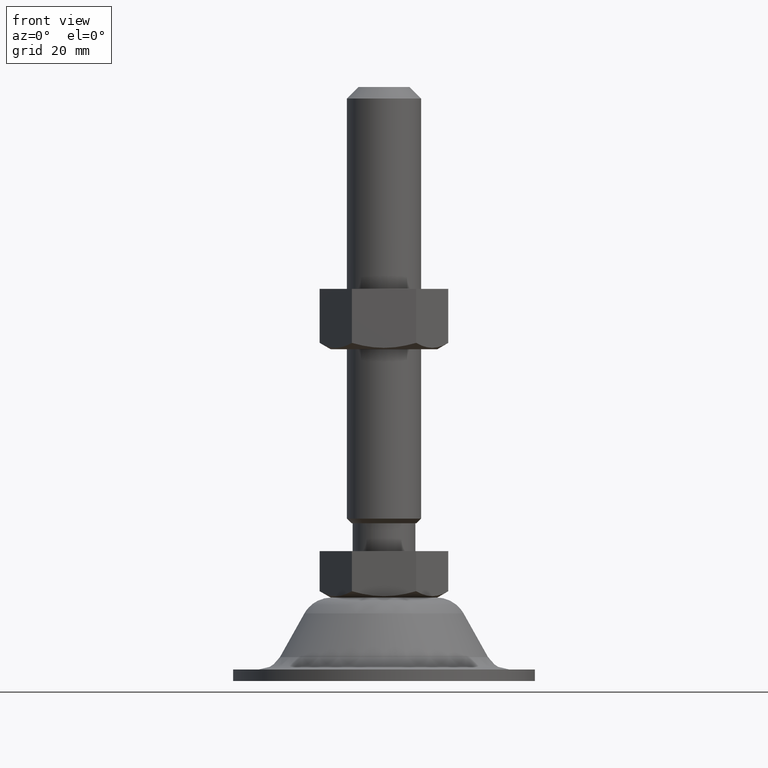
[diagram: clean part render]
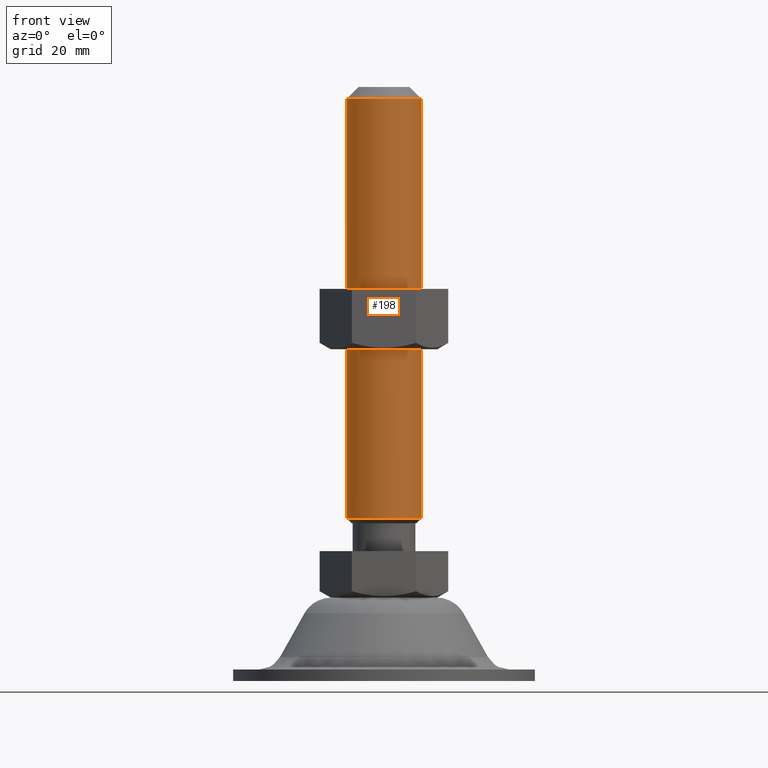
[diagram: same view with one face highlighted and labeled with its STEP entity id]
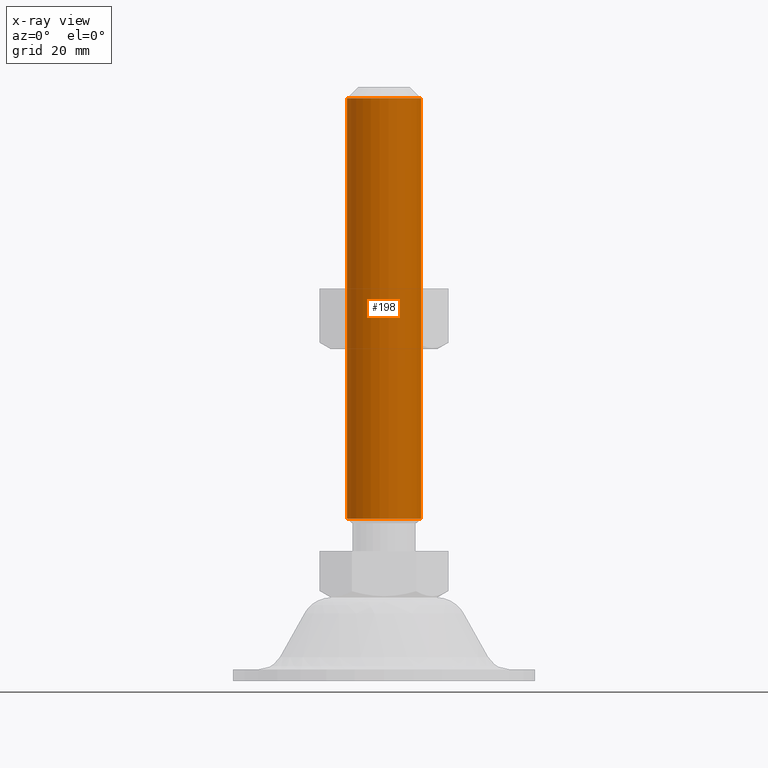
[diagram: x-ray of the same camera — body ghosted, the highlighted face saturated]
A machine part, front view. The second image highlights one B-rep face of the part: STEP entity #198.
The next image is the same camera in x-ray: the body ghosted, the highlighted face saturated — about 0% of this face is hidden behind the body in this view.
In plain terms, the highlighted cylindrical surface (partial cylindrical patch) has radius 8 mm, axis along (0, 0, 1).
Its self-contained STEP definition (entity closure, byte-faithful):
#198=ADVANCED_FACE('',(#736),#735,.T.);
#735=CYLINDRICAL_SURFACE('',#1441,8.00000000017E+00);
#736=FACE_OUTER_BOUND('',#1442,.T.);
#1438=CARTESIAN_POINT('',(-3.19460013998E-11,0.00000000000E+00,0.00000000000E+00));
#1439=DIRECTION('',(0.00000000000E+00,-0.00000000000E+00,1.00000000000E+00));
#1440=DIRECTION('',(1.00000000000E+00,0.00000000000E+00,0.00000000000E+00));
#1441=AXIS2_PLACEMENT_3D('',#1438,#1439,#1440);
#1442=EDGE_LOOP('',(#2117,#2118,#2119,#2120));
#2117=ORIENTED_EDGE('',*,*,#2424,.F.);
#2118=ORIENTED_EDGE('',*,*,#2421,.T.);
#2119=ORIENTED_EDGE('',*,*,#2417,.T.);
#2120=ORIENTED_EDGE('',*,*,#2423,.F.);
#2417=EDGE_CURVE('',#3331,#3332,#3333,.T.);
#2421=EDGE_CURVE('',#3357,#3331,#3358,.T.);
#2423=EDGE_CURVE('',#3364,#3332,#3371,.T.);
#2424=EDGE_CURVE('',#3357,#3364,#3377,.T.);
#3331=VERTEX_POINT('',#4471);
#3332=VERTEX_POINT('',#4472);
#3333=CIRCLE('',#4476,8.00000000027E+00);
#3357=VERTEX_POINT('',#4485);
#3358=(BOUNDED_CURVE() B_SPLINE_CURVE(1,(#4486,#4487),.UNSPECIFIED.,.F.,.F.) B_SPLINE_CURVE_WITH_KNOTS((2,2),(8.33333332085E-02,9.16666666563E-01),.UNSPECIFIED.) CURVE() GEOMETRIC_REPRESENTATION_ITEM() RATIONAL_B_SPLINE_CURVE((1.00000000000E+00,1.00000000000E+00)) REPRESENTATION_ITEM('') );
#3364=VERTEX_POINT('',#4488);
#3371=(BOUNDED_CURVE() B_SPLINE_CURVE(1,(#4493,#4494),.UNSPECIFIED.,.F.,.F.) B_SPLINE_CURVE_WITH_KNOTS((2,2),(8.33333333333E-02,9.16666666667E-01),.UNSPECIFIED.) CURVE() GEOMETRIC_REPRESENTATION_ITEM() RATIONAL_B_SPLINE_CURVE((7.50000000000E-01,7.50000000000E-01)) REPRESENTATION_ITEM('') );
#3377=CIRCLE('',#4498,8.00000000007E+00);
#4471=CARTESIAN_POINT('',(8.00000000023E+00,8.88178419700E-16,9.74999998657E+01));
#4472=CARTESIAN_POINT('',(-8.00000000030E+00,0.00000000000E+00,9.74999998657E+01));
#4473=CARTESIAN_POINT('',(-3.19460013998E-11,0.00000000000E+00,9.74999998657E+01));
#4474=DIRECTION('',(-0.00000000000E+00,0.00000000000E+00,-1.00000000000E+00));
#4475=DIRECTION('',(-1.00000000000E+00,-1.22460635382E-16,0.00000000000E+00));
#4476=AXIS2_PLACEMENT_3D('',#4473,#4474,#4475);
#4485=CARTESIAN_POINT('',(8.00000000004E+00,8.88178419700E-16,6.99999999998E+00));
#4486=CARTESIAN_POINT('',(8.00000000014E+00,0.00000000000E+00,6.99999998642E+00));
#4487=CARTESIAN_POINT('',(8.00000000014E+00,0.00000000000E+00,9.74999998544E+01));
#4488=CARTESIAN_POINT('',(-8.00000000010E+00,0.00000000000E+00,6.99999999998E+00));
#4493=CARTESIAN_POINT('',(-8.00000000020E+00,-2.96059473233E-16,6.99999999998E+00));
#4494=CARTESIAN_POINT('',(-8.00000000020E+00,-2.96059473233E-16,9.74999998657E+01));
#4495=CARTESIAN_POINT('',(-3.19460013998E-11,0.00000000000E+00,6.99999999998E+00));
#4496=DIRECTION('',(-0.00000000000E+00,0.00000000000E+00,-1.00000000000E+00));
#4497=DIRECTION('',(-1.00000000000E+00,-1.22460635382E-16,0.00000000000E+00));
#4498=AXIS2_PLACEMENT_3D('',#4495,#4496,#4497);